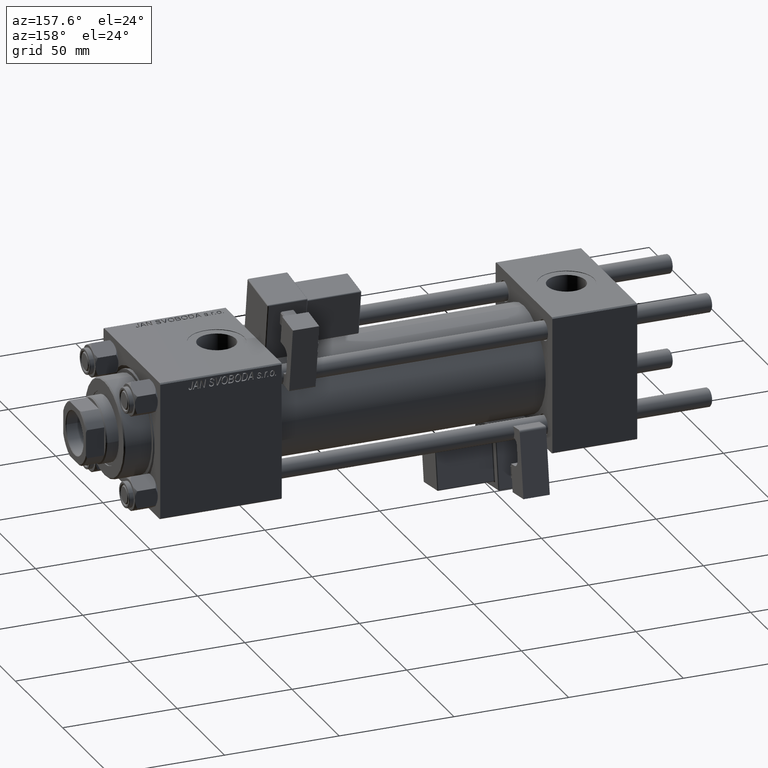
[diagram: clean part render]
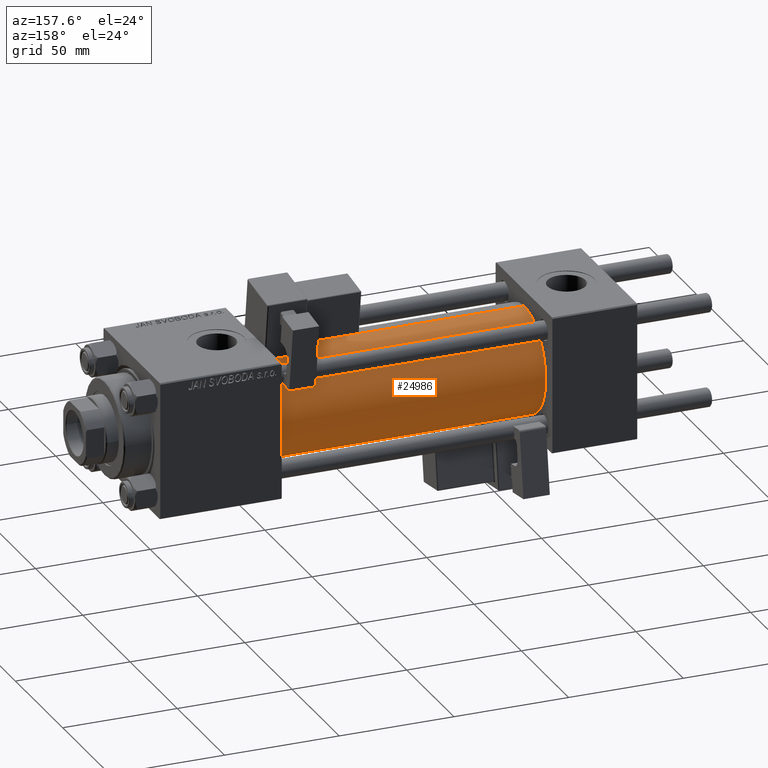
[diagram: same view with one face highlighted and labeled with its STEP entity id]
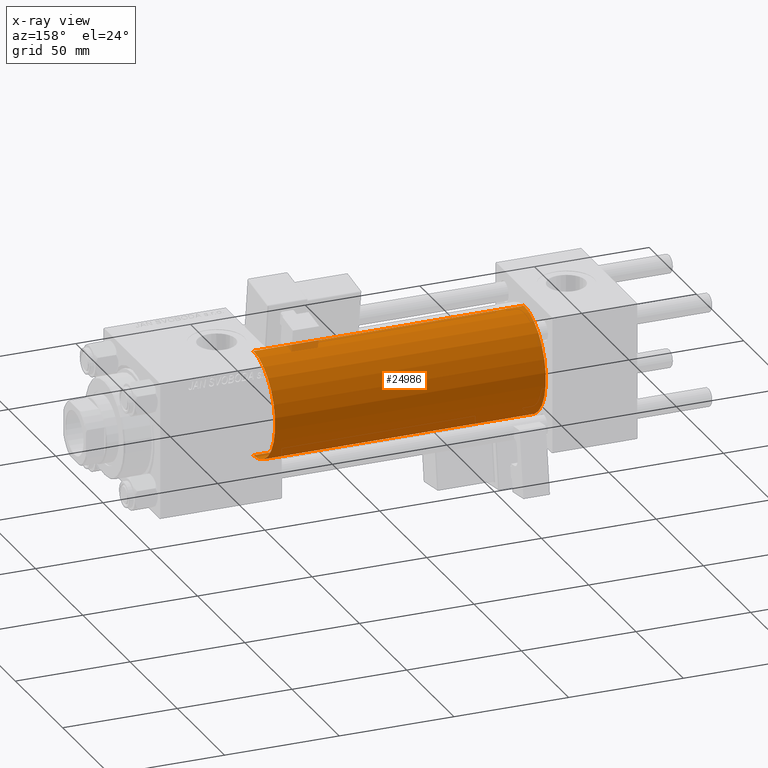
[diagram: x-ray of the same camera — body ghosted, the highlighted face saturated]
A machine part, auxiliary view. The second image highlights one B-rep face of the part: STEP entity #24986.
The next image is the same camera in x-ray: the body ghosted, the highlighted face saturated — about 1% of this face is hidden behind the body in this view.
In plain terms, the highlighted cylindrical surface (partial cylindrical patch) has radius 23 mm, axis along (-1, -0, -0).
Its self-contained STEP definition (entity closure, byte-faithful):
#2636 = CARTESIAN_POINT ( 'NONE',  ( 37.00000000000000711, 2.816687638038912352E-15, -23.00000000000000000 ) ) ;
#4546 = FACE_OUTER_BOUND ( 'NONE', #24772, .T. ) ;
#5708 = CARTESIAN_POINT ( 'NONE',  ( 155.0000000000000000, 0.000000000000000000, 23.00000000000000000 ) ) ;
#5790 = VERTEX_POINT ( 'NONE', #10778 ) ;
#5828 = CARTESIAN_POINT ( 'NONE',  ( 155.0000000000000000, 2.816687638038912352E-15, -23.00000000000000000 ) ) ;
#6264 = CARTESIAN_POINT ( 'NONE',  ( 155.0000000000000000, 0.000000000000000000, 0.000000000000000000 ) ) ;
#6413 = DIRECTION ( 'NONE',  ( -1.000000000000000000, -0.000000000000000000, -0.000000000000000000 ) ) ;
#6530 = DIRECTION ( 'NONE',  ( 0.000000000000000000, 0.000000000000000000, -1.000000000000000000 ) ) ;
#8172 = ORIENTED_EDGE ( 'NONE', *, *, #38674, .F. ) ;
#10778 = CARTESIAN_POINT ( 'NONE',  ( 155.0000000000000000, 0.000000000000000000, 23.00000000000000000 ) ) ;
#11869 = CARTESIAN_POINT ( 'NONE',  ( 37.00000000000000711, 0.000000000000000000, 0.000000000000000000 ) ) ;
#12255 = VERTEX_POINT ( 'NONE', #5828 ) ;
#12655 = EDGE_CURVE ( 'NONE', #12255, #5790, #16495, .T. ) ;
#13629 = LINE ( 'NONE', #5708, #18429 ) ;
#13799 = CARTESIAN_POINT ( 'NONE',  ( 155.0000000000000000, 2.816687638038912352E-15, -23.00000000000000000 ) ) ;
#14451 = DIRECTION ( 'NONE',  ( 1.000000000000000000, 0.000000000000000000, 0.000000000000000000 ) ) ;
#14812 = AXIS2_PLACEMENT_3D ( 'NONE', #6264, #14451, #6530 ) ;
#16495 = CIRCLE ( 'NONE', #14812, 23.00000000000000000 ) ;
#16954 = DIRECTION ( 'NONE',  ( 0.000000000000000000, 0.000000000000000000, 1.000000000000000000 ) ) ;
#17401 = DIRECTION ( 'NONE',  ( 0.000000000000000000, 0.000000000000000000, 1.000000000000000000 ) ) ;
#18429 = VECTOR ( 'NONE', #46268, 1000.000000000000000 ) ;
#20646 = CYLINDRICAL_SURFACE ( 'NONE', #26934, 23.00000000000000000 ) ;
#20913 = DIRECTION ( 'NONE',  ( -1.000000000000000000, -0.000000000000000000, -0.000000000000000000 ) ) ;
#23287 = VERTEX_POINT ( 'NONE', #46894 ) ;
#23513 = AXIS2_PLACEMENT_3D ( 'NONE', #11869, #36328, #17401 ) ;
#24772 = EDGE_LOOP ( 'NONE', ( #42706, #25300, #42909, #8172 ) ) ;
#24986 = ADVANCED_FACE ( 'NONE', ( #4546 ), #20646, .T. ) ;
#25300 = ORIENTED_EDGE ( 'NONE', *, *, #45719, .T. ) ;
#26042 = CIRCLE ( 'NONE', #23513, 23.00000000000000000 ) ;
#26934 = AXIS2_PLACEMENT_3D ( 'NONE', #48797, #20913, #16954 ) ;
#36328 = DIRECTION ( 'NONE',  ( 1.000000000000000000, -0.000000000000000000, 0.000000000000000000 ) ) ;
#38674 = EDGE_CURVE ( 'NONE', #5790, #23287, #13629, .T. ) ;
#39420 = EDGE_CURVE ( 'NONE', #45258, #23287, #26042, .T. ) ;
#42706 = ORIENTED_EDGE ( 'NONE', *, *, #12655, .F. ) ;
#42909 = ORIENTED_EDGE ( 'NONE', *, *, #39420, .T. ) ;
#45258 = VERTEX_POINT ( 'NONE', #2636 ) ;
#45719 = EDGE_CURVE ( 'NONE', #12255, #45258, #45920, .T. ) ;
#45920 = LINE ( 'NONE', #13799, #50496 ) ;
#46268 = DIRECTION ( 'NONE',  ( -1.000000000000000000, -0.000000000000000000, -0.000000000000000000 ) ) ;
#46894 = CARTESIAN_POINT ( 'NONE',  ( 37.00000000000000711, 0.000000000000000000, 23.00000000000000000 ) ) ;
#48797 = CARTESIAN_POINT ( 'NONE',  ( 155.0000000000000000, 0.000000000000000000, 0.000000000000000000 ) ) ;
#50496 = VECTOR ( 'NONE', #6413, 1000.000000000000000 ) ;